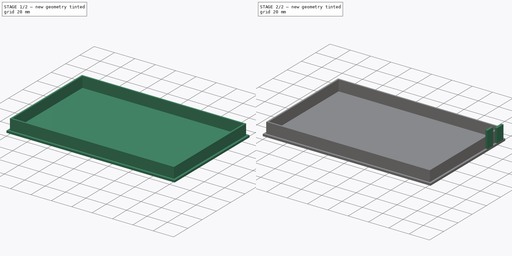
[diagram: build sequence overview — one tinted view per stage of 2, left to right]
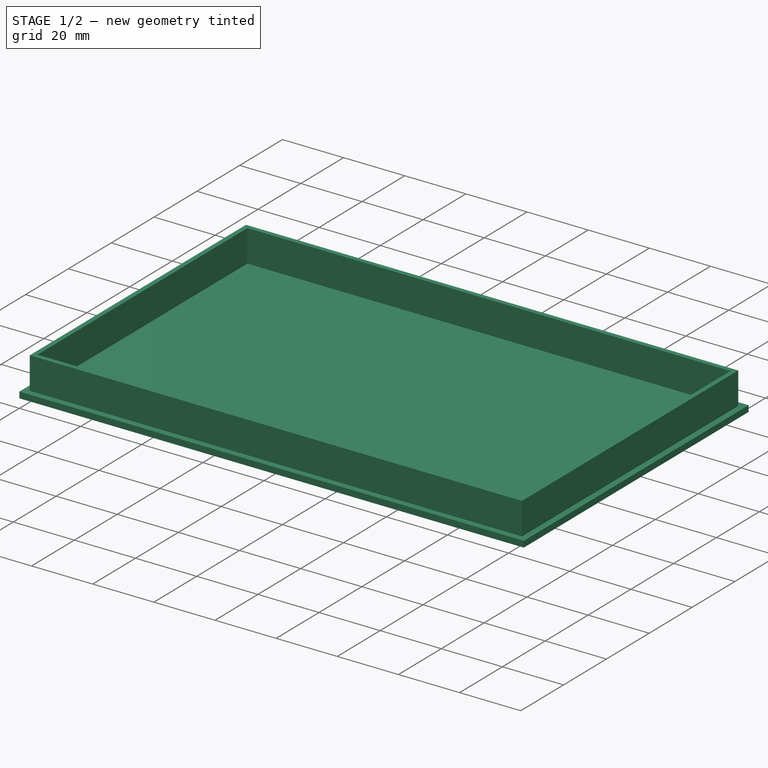
[diagram: stage 1 of 2 — iso view after this stage's code; geometry added in this stage tinted green]
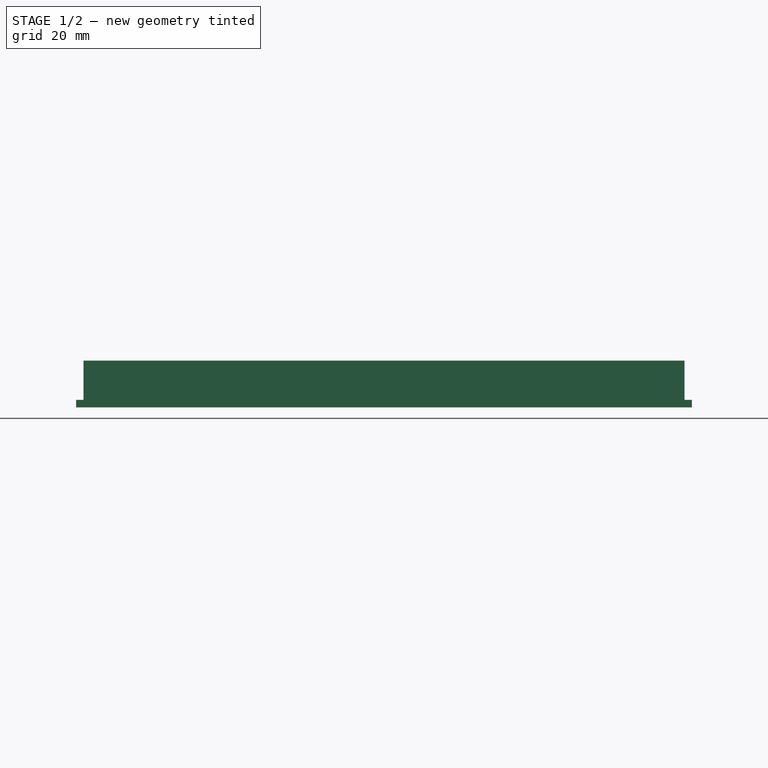
[diagram: stage 1 of 2 — front view after this stage's code; geometry added in this stage tinted green]
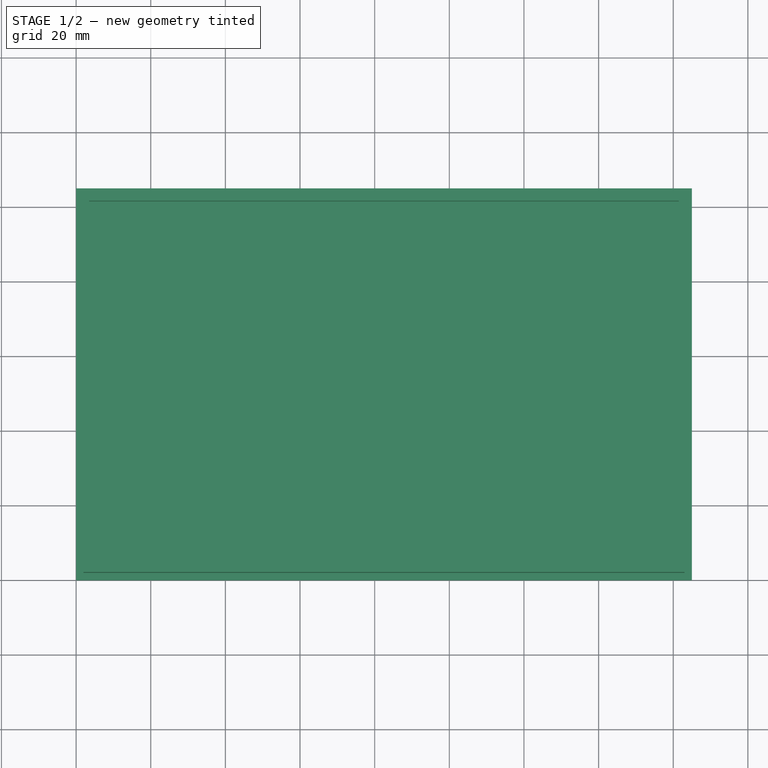
[diagram: stage 1 of 2 — top view after this stage's code; geometry added in this stage tinted green]
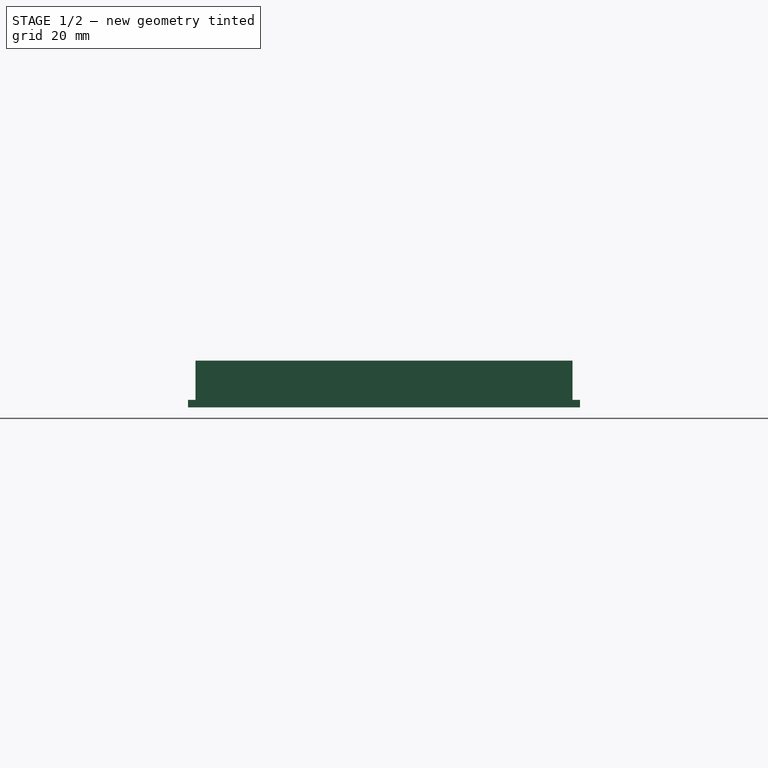
[diagram: stage 1 of 2 — right view after this stage's code; geometry added in this stage tinted green]
FCSTD DOCUMENT  (FreeCAD 0.14R3702 (Git))
Label: Case Base
License: CC-BY 3.0
LicenseURL: http://creativecommons.org/licenses/by/3.0/
objects: Sketcher::SketchObject×4, PartDesign::Pad×4
note: 12 computed .brp shape members not serialized (recipe doc carries the construction recipe); baked Part::Feature solids carry a one-line shape summary decoded from their .brp

FEATURE [Sketcher::SketchObject] Sketch
  sketch-geometry (4):
    g0: LineSegment StartX=0 StartY=0 StartZ=0 EndX=165 EndY=0 EndZ=0
    g1: LineSegment StartX=165 StartY=0 StartZ=0 EndX=165 EndY=105 EndZ=0
    g2: LineSegment StartX=165 StartY=105 StartZ=0 EndX=0 EndY=105 EndZ=0
    g3: LineSegment StartX=0 StartY=105 StartZ=0 EndX=0 EndY=0 EndZ=0
  constraints (11):
    c: Coincident(g0,g1)
    c: Coincident(g1,g2)
    c: Coincident(g2,g3)
    c: Coincident(g3,g0)
    c: Horizontal(g0)
    c: Horizontal(g2)
    c: Vertical(g1)
    c: Vertical(g3)
    c: Coincident(g0,g-1)
    c: Distance(g0) = 165
    c: Distance(g3) = 105
FEATURE [PartDesign::Pad] Pad
  Length = 2
  Length2 = 100
  Sketch = -> Sketch
  Type = 0
FEATURE [Sketcher::SketchObject] Sketch001
  Placement = pos=(0,0,2) rot=(0,0,1;0rad)
  Support = -> Pad [Face6]
  sketch-geometry (8):
    g0: LineSegment StartX=2 StartY=2 StartZ=0 EndX=163 EndY=2 EndZ=0
    g1: LineSegment StartX=163 StartY=2 StartZ=0 EndX=163 EndY=103 EndZ=0
    g2: LineSegment StartX=163 StartY=103 StartZ=0 EndX=2 EndY=103 EndZ=0
    g3: LineSegment StartX=2 StartY=103 StartZ=0 EndX=2 EndY=2 EndZ=0
    g4: LineSegment StartX=3.5 StartY=3.5 StartZ=0 EndX=161.5 EndY=3.5 EndZ=0
    g5: LineSegment StartX=161.5 StartY=3.5 StartZ=0 EndX=161.5 EndY=101.5 EndZ=0
    g6: LineSegment StartX=161.5 StartY=101.5 StartZ=0 EndX=3.5 EndY=101.5 EndZ=0
    g7: LineSegment StartX=3.5 StartY=101.5 StartZ=0 EndX=3.5 EndY=3.5 EndZ=0
  constraints (24):
    c: Coincident(g0,g1)
    c: Coincident(g1,g2)
    c: Coincident(g2,g3)
    c: Coincident(g3,g0)
    c: Horizontal(g0)
    c: Horizontal(g2)
    c: Vertical(g1)
    c: Vertical(g3)
    c: DistanceX(g0) = 2
    c: DistanceY(g0) = 2
    c: Distance(g0) = 161
    c: Distance(g3) = 101
    c: Coincident(g4,g5)
    c: Coincident(g5,g6)
    c: Coincident(g6,g7)
    c: Coincident(g7,g4)
    c: Horizontal(g4)
    c: Horizontal(g6)
    c: Vertical(g5)
    c: Vertical(g7)
    c: DistanceX(g4) = 3.5
    c: DistanceY(g4) = 3.5
    c: Distance(g4) = 158
    c: Distance(g7) = 98
FEATURE [PartDesign::Pad] Pad001
  Length = 10.5
  Length2 = 100
  Sketch = -> Sketch001
  Type = 0
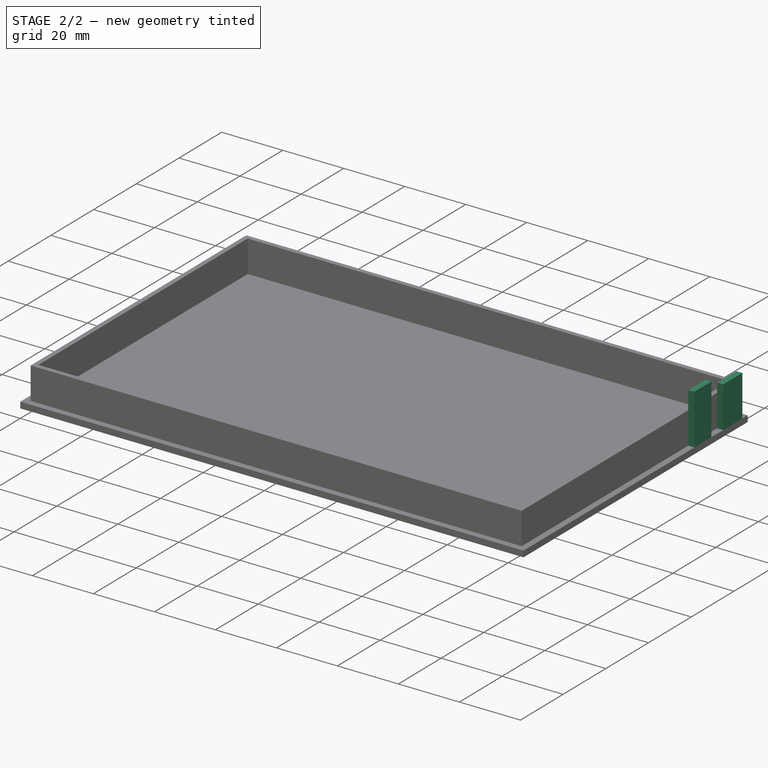
[diagram: stage 2 of 2 — iso view after this stage's code; geometry added in this stage tinted green]
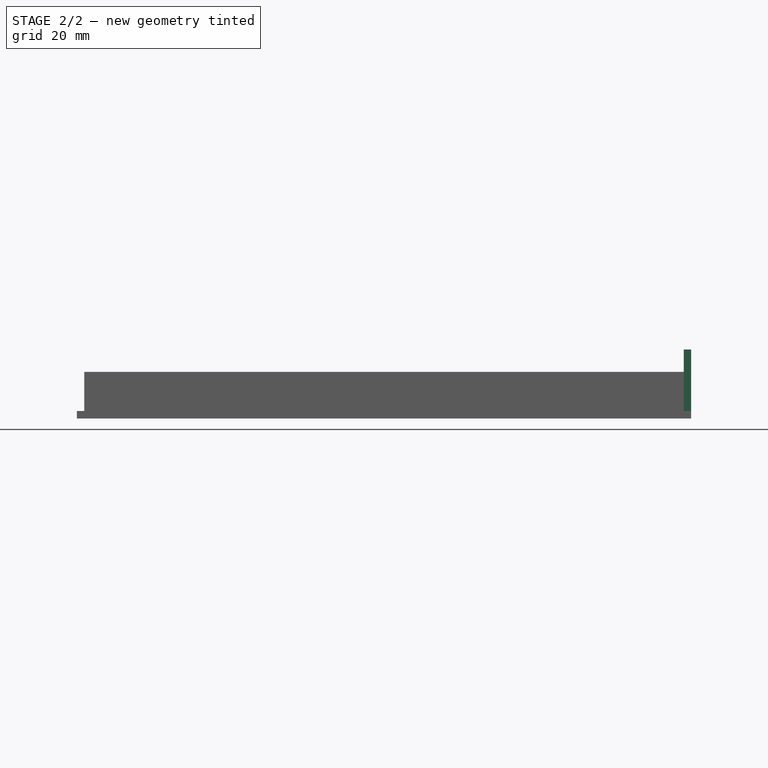
[diagram: stage 2 of 2 — front view after this stage's code; geometry added in this stage tinted green]
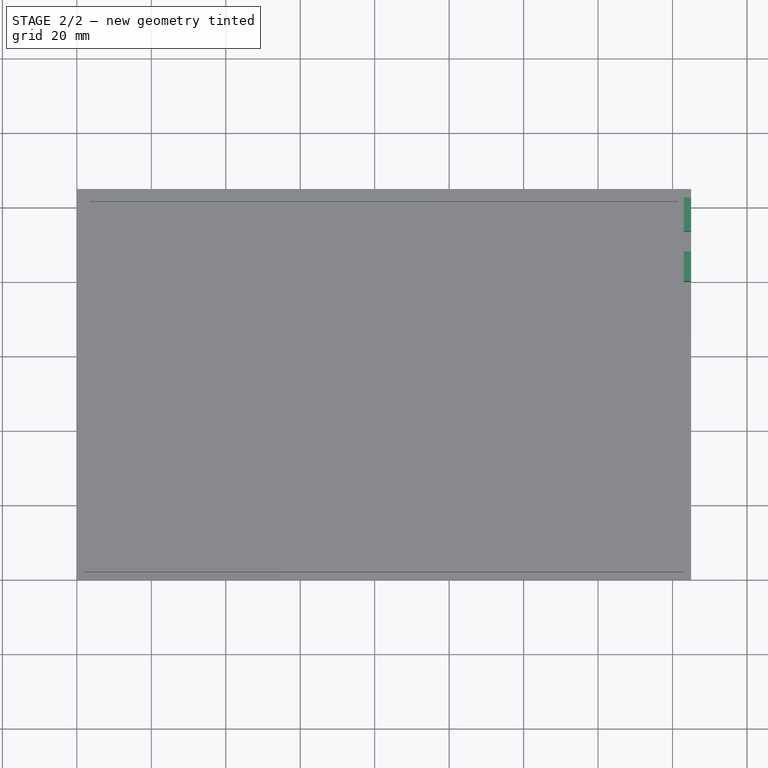
[diagram: stage 2 of 2 — top view after this stage's code; geometry added in this stage tinted green]
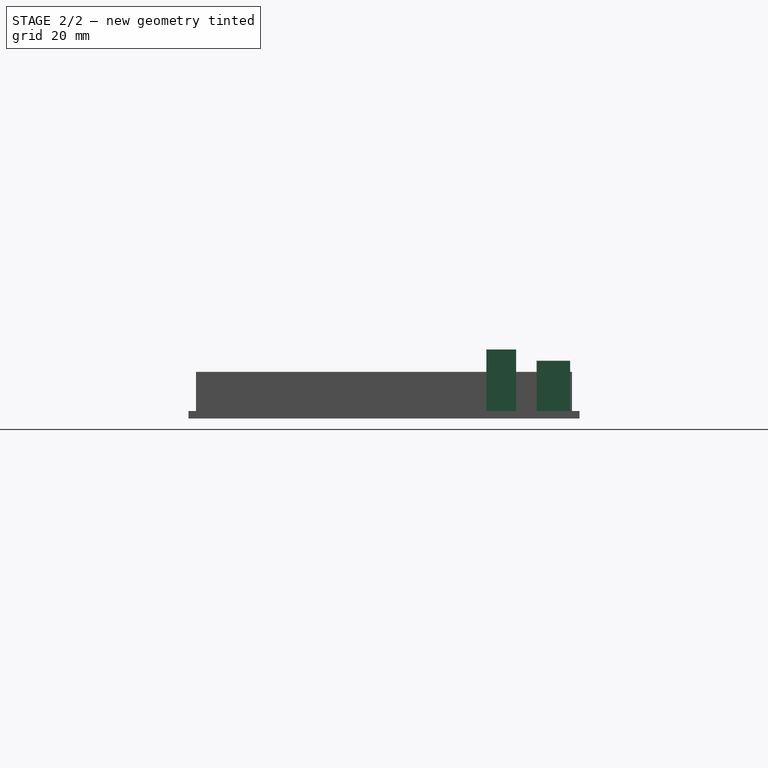
[diagram: stage 2 of 2 — right view after this stage's code; geometry added in this stage tinted green]
FEATURE [Sketcher::SketchObject] Sketch002
  Placement = pos=(0,0,2) rot=(0,0,1;0rad)
  Support = -> Pad001 [Face5]
  sketch-geometry (4):
    g0: LineSegment StartX=165 StartY=80 StartZ=0 EndX=163 EndY=80 EndZ=0
    g1: LineSegment StartX=163 StartY=80 StartZ=0 EndX=163 EndY=88 EndZ=0
    g2: LineSegment StartX=163 StartY=88 StartZ=0 EndX=165 EndY=88 EndZ=0
    g3: LineSegment StartX=165 StartY=88 StartZ=0 EndX=165 EndY=80 EndZ=0
  constraints (12):
    c: Coincident(g0,g1)
    c: Coincident(g1,g2)
    c: Coincident(g2,g3)
    c: Coincident(g3,g0)
    c: Horizontal(g0)
    c: Horizontal(g2)
    c: Vertical(g1)
    c: Vertical(g3)
    c: Distance(g-1,g3) = 165
    c: Distance(g-1,g1) = 163
    c: Distance(g-1,g2) = 88
    c: Distance(g3) = 8
FEATURE [PartDesign::Pad] Pad002
  Length = 16.5
  Length2 = 100
  Sketch = -> Sketch002
  Type = 0
FEATURE [Sketcher::SketchObject] Sketch003
  Placement = pos=(0,0,2) rot=(0,0,1;0rad)
  Support = -> Pad002 [Face5]
  sketch-geometry (4):
    g0: LineSegment StartX=165 StartY=102.5 StartZ=0 EndX=163 EndY=102.5 EndZ=0
    g1: LineSegment StartX=163 StartY=102.5 StartZ=0 EndX=163 EndY=93.5 EndZ=0
    g2: LineSegment StartX=163 StartY=93.5 StartZ=0 EndX=165 EndY=93.5 EndZ=0
    g3: LineSegment StartX=165 StartY=93.5 StartZ=0 EndX=165 EndY=102.5 EndZ=0
  constraints (12):
    c: Coincident(g0,g1)
    c: Coincident(g1,g2)
    c: Coincident(g2,g3)
    c: Coincident(g3,g0)
    c: Horizontal(g0)
    c: Horizontal(g2)
    c: Vertical(g1)
    c: Vertical(g3)
    c: Distance(g-1,g3) = 165
    c: Distance(g-1,g1) = 163
    c: Distance(g-1,g0) = 102.5
    c: Distance(g3) = 9
FEATURE [PartDesign::Pad] Pad003
  Length = 13.5
  Length2 = 100
  Sketch = -> Sketch003
  Type = 0
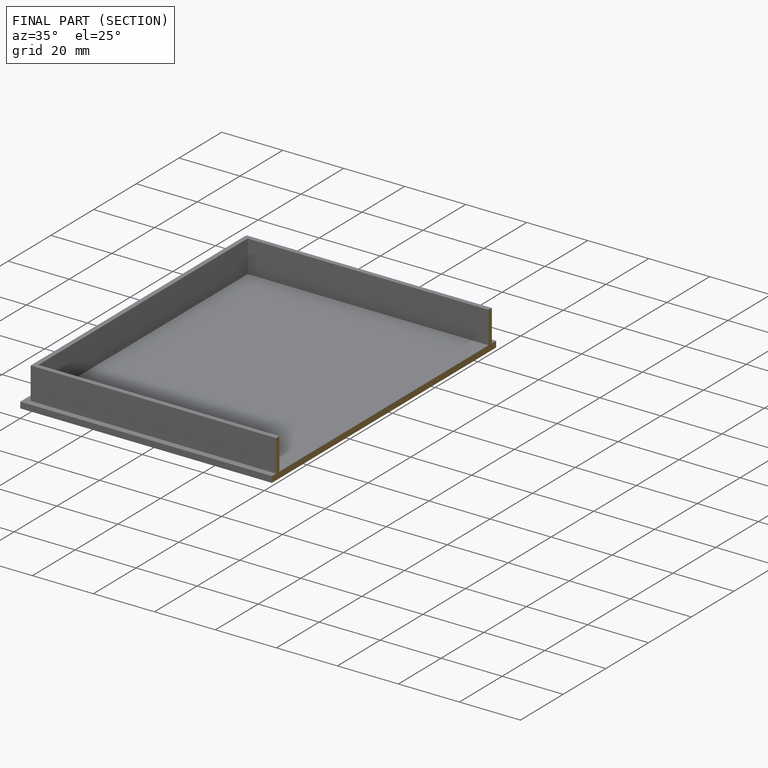
[diagram: finished part — half-section view (interior)]
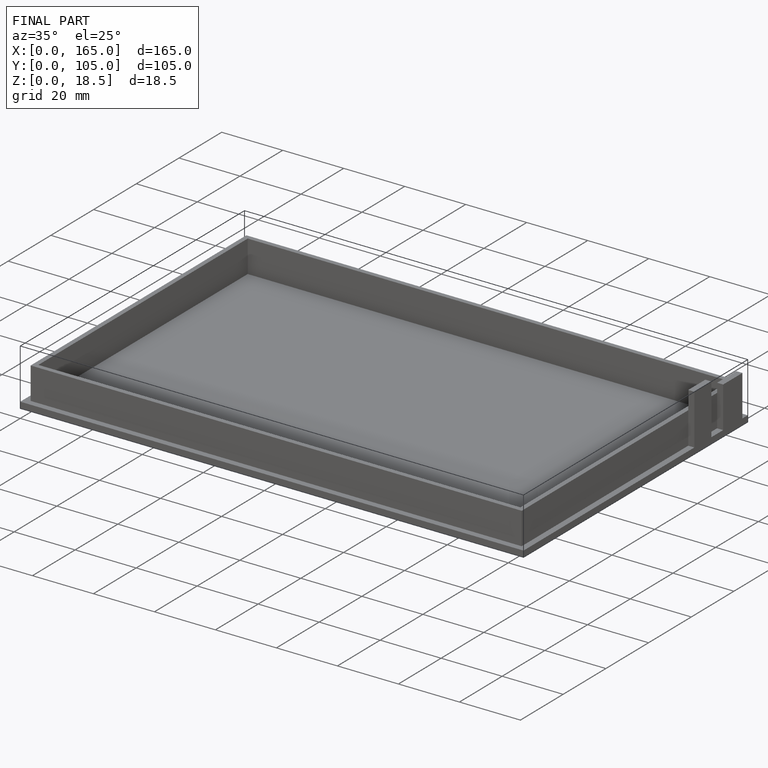
[diagram: finished part — iso view with bounding-box wireframe]
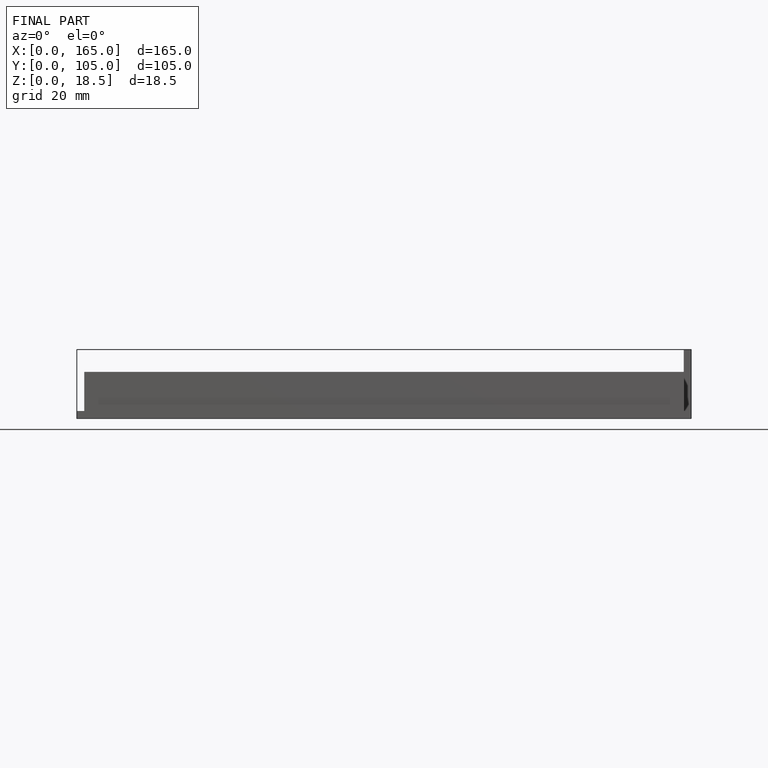
[diagram: finished part — front view with bounding-box wireframe]
